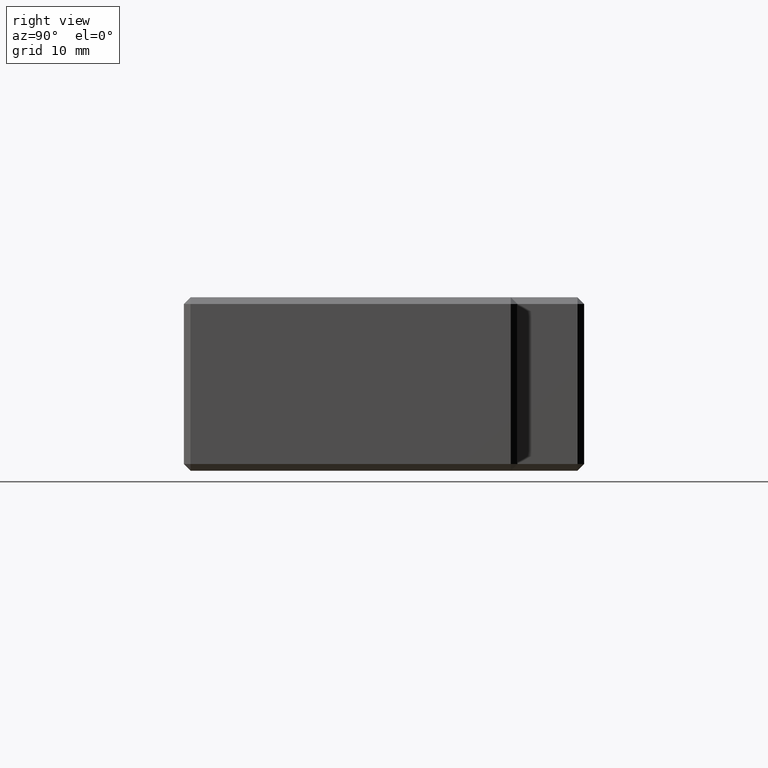
[diagram: clean part render]
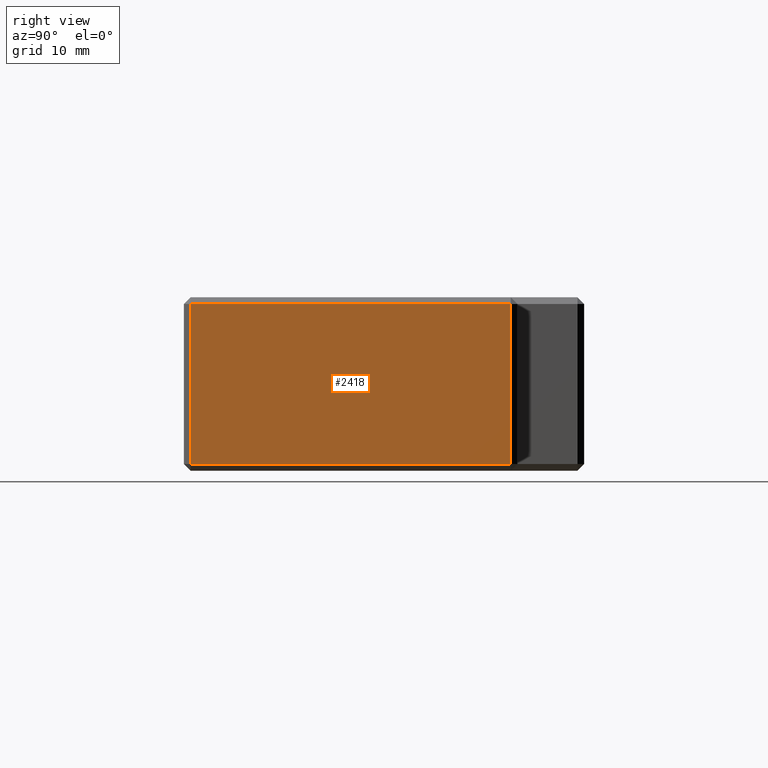
[diagram: same view with one face highlighted and labeled with its STEP entity id]
A machine part, right view. The second image highlights one B-rep face of the part: STEP entity #2418.
In plain terms, the highlighted planar face has unit normal (-1, 0, 0).
Its self-contained STEP definition (entity closure, byte-faithful):
#36 = EDGE_CURVE ( 'NONE', #481, #3580, #5460, .T. ) ;
#70 = LINE ( 'NONE', #3043, #4546 ) ;
#147 = DIRECTION ( 'NONE',  ( 0.0000000000000000000, 0.0000000000000000000, 1.000000000000000000 ) ) ;
#153 = DIRECTION ( 'NONE',  ( -1.000000000000000000, 0.0000000000000000000, 0.0000000000000000000 ) ) ;
#164 = PLANE ( 'NONE',  #5506 ) ;
#350 = CARTESIAN_POINT ( 'NONE',  ( 44.00000000000002100, 1.077689183249670700E-014, 13.00000000000000200 ) ) ;
#481 = VERTEX_POINT ( 'NONE', #3935 ) ;
#657 = VECTOR ( 'NONE', #3642, 1000.000000000000000 ) ;
#771 = LINE ( 'NONE', #3223, #951 ) ;
#834 = LINE ( 'NONE', #3691, #657 ) ;
#951 = VECTOR ( 'NONE', #3243, 1000.000000000000000 ) ;
#962 = EDGE_CURVE ( 'NONE', #3580, #2689, #771, .T. ) ;
#976 = CARTESIAN_POINT ( 'NONE',  ( 44.00000000000002100, 49.00000000000004300, -12.00000000000003600 ) ) ;
#1122 = CARTESIAN_POINT ( 'NONE',  ( 44.00000000000002100, 1.077689183249670700E-014, 12.00000000000002700 ) ) ;
#1127 = DIRECTION ( 'NONE',  ( 0.0000000000000000000, 1.000000000000000000, -0.0000000000000000000 ) ) ;
#1782 = FACE_OUTER_BOUND ( 'NONE', #4487, .T. ) ;
#2024 = VERTEX_POINT ( 'NONE', #4923 ) ;
#2418 = ADVANCED_FACE ( 'NONE', ( #1782 ), #164, .F. ) ;
#2689 = VERTEX_POINT ( 'NONE', #976 ) ;
#2729 = CARTESIAN_POINT ( 'NONE',  ( 44.00000000000002100, 49.00000000000004300, 12.00000000000002500 ) ) ;
#3043 = CARTESIAN_POINT ( 'NONE',  ( 44.00000000000002100, 1.077689183249670700E-014, -12.00000000000002700 ) ) ;
#3110 = DIRECTION ( 'NONE',  ( 0.0000000000000000000, 1.000000000000000000, -0.0000000000000000000 ) ) ;
#3223 = CARTESIAN_POINT ( 'NONE',  ( 44.00000000000002100, 49.00000000000004300, 13.00000000000000200 ) ) ;
#3243 = DIRECTION ( 'NONE',  ( -0.0000000000000000000, -0.0000000000000000000, -1.000000000000000000 ) ) ;
#3427 = EDGE_CURVE ( 'NONE', #2024, #481, #834, .T. ) ;
#3580 = VERTEX_POINT ( 'NONE', #2729 ) ;
#3642 = DIRECTION ( 'NONE',  ( 0.0000000000000000000, 0.0000000000000000000, 1.000000000000000000 ) ) ;
#3691 = CARTESIAN_POINT ( 'NONE',  ( 44.00000000000002100, 0.9999999999999829000, 13.00000000000000200 ) ) ;
#3935 = CARTESIAN_POINT ( 'NONE',  ( 44.00000000000002100, 0.9999999999999842300, 12.00000000000002500 ) ) ;
#4177 = EDGE_CURVE ( 'NONE', #2024, #2689, #70, .T. ) ;
#4487 = EDGE_LOOP ( 'NONE', ( #4992, #4987, #4975, #4969 ) ) ;
#4546 = VECTOR ( 'NONE', #3110, 1000.000000000000000 ) ;
#4923 = CARTESIAN_POINT ( 'NONE',  ( 44.00000000000002100, 0.9999999999999840100, -12.00000000000002800 ) ) ;
#4969 = ORIENTED_EDGE ( 'NONE', *, *, #36, .F. ) ;
#4975 = ORIENTED_EDGE ( 'NONE', *, *, #962, .F. ) ;
#4987 = ORIENTED_EDGE ( 'NONE', *, *, #4177, .T. ) ;
#4992 = ORIENTED_EDGE ( 'NONE', *, *, #3427, .F. ) ;
#5460 = LINE ( 'NONE', #1122, #5522 ) ;
#5506 = AXIS2_PLACEMENT_3D ( 'NONE', #350, #153, #147 ) ;
#5522 = VECTOR ( 'NONE', #1127, 1000.000000000000000 ) ;